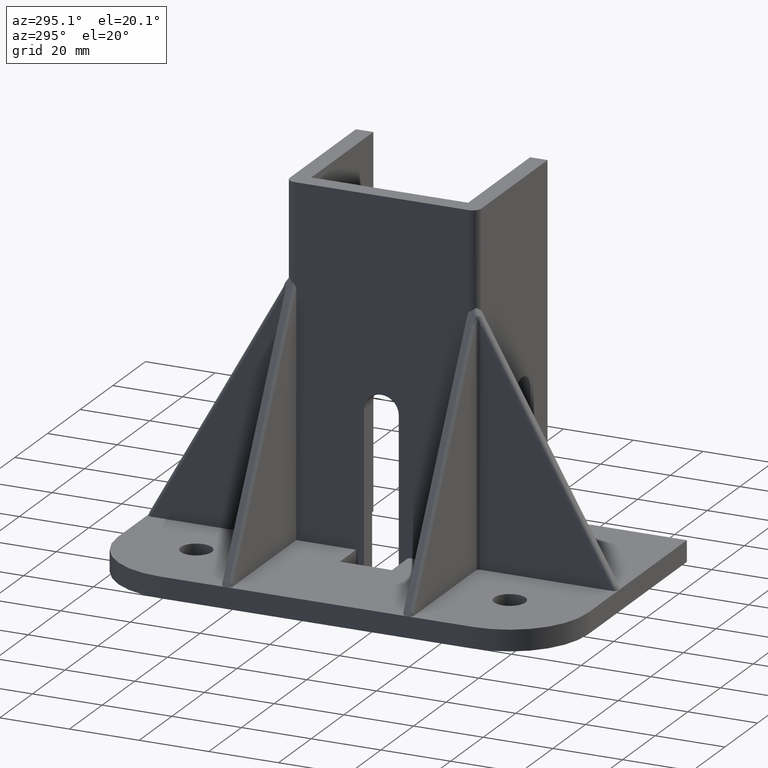
[diagram: clean part render]
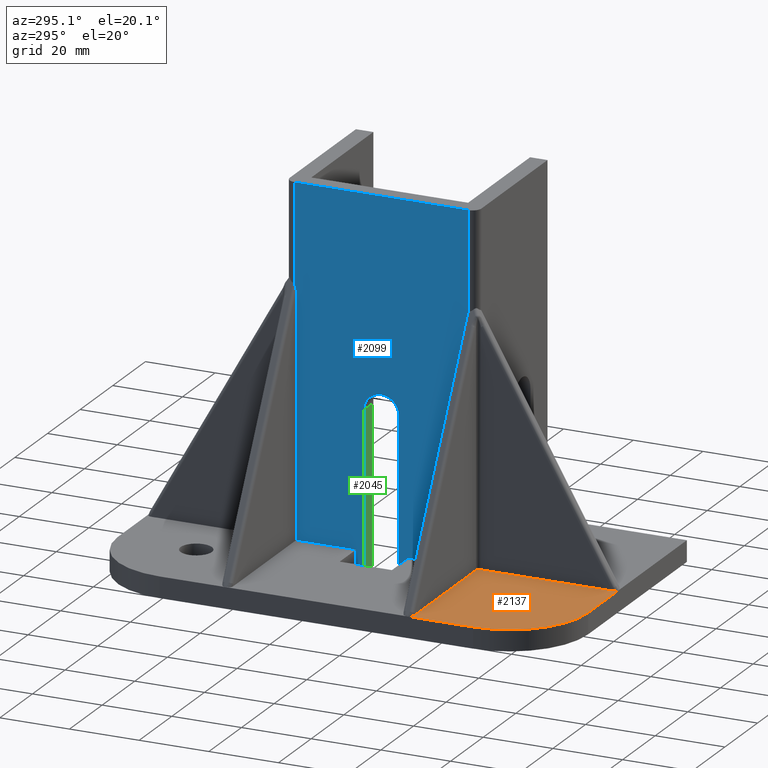
[diagram: same view with three faces highlighted in distinct colors, each labeled with its STEP entity id]
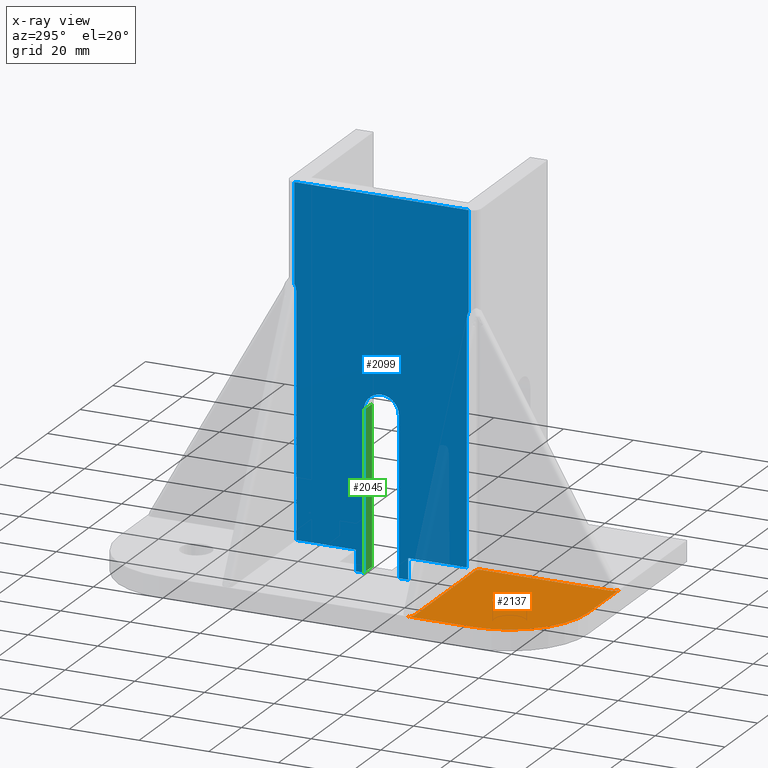
[diagram: x-ray of the same camera — body ghosted, the three highlighted faces saturated]
A machine part, auxiliary view with three faces highlighted in distinct colors.
The next image is the same camera in x-ray (body ghosted, the three faces saturated) — at least one of them is partly hidden behind the body in this view.
Their STEP definitions:

[orange] entity #2137 — the highlighted planar face has unit normal (0, 0, 1).
#46=FACE_BOUND('',#416,.T.);
#69=B_SPLINE_CURVE_WITH_KNOTS('',3,(#3818,#3819,#3820,#3821,#3822,#3823),
 .UNSPECIFIED.,.F.,.F.,(4,2,4),(-0.0723829679389083,-0.0363558015986033,
-1.19564037214156E-5),.UNSPECIFIED.);
#73=B_SPLINE_CURVE_WITH_KNOTS('',3,(#4177,#4178,#4179,#4180,#4181,#4182,
#4183,#4184),.UNSPECIFIED.,.F.,.F.,(4,2,2,4),(-0.0499113844259608,-0.0496432788258333,
-0.0245706501249044,0.),.UNSPECIFIED.);
#128=B_SPLINE_CURVE_WITH_KNOTS('',3,(#7111,#7112,#7113,#7114,#7115,#7116),
 .UNSPECIFIED.,.F.,.F.,(4,2,4),(-0.0723829981027942,-0.0363558166414322,
-1.19564860562881E-5),.UNSPECIFIED.);
#136=B_SPLINE_CURVE_WITH_KNOTS('',3,(#7513,#7514,#7515,#7516,#7517,#7518,
#7519,#7520),.UNSPECIFIED.,.F.,.F.,(4,2,2,4),(-0.0268378170276812,-0.0266967196582592,
-0.0135016130678269,0.),.UNSPECIFIED.);
#205=PLANE('',#2303);
#305=FACE_OUTER_BOUND('',#415,.T.);
#415=EDGE_LOOP('',(#1912,#1913,#1914,#1915,#1916,#1917,#1918,#1919,#1920,
#1921,#1922,#1923));
#416=EDGE_LOOP('',(#1924));
#555=LINE('',#3089,#722);
#592=LINE('',#5713,#759);
#593=LINE('',#7522,#760);
#594=LINE('',#7523,#761);
#722=VECTOR('',#2573,37.4999249998502);
#759=VECTOR('',#2712,37.49992499985);
#760=VECTOR('',#2735,18.9999619999243);
#761=VECTOR('',#2736,18.9999619999242);
#785=CIRCLE('',#2222,22.4999549999099);
#787=CIRCLE('',#2235,4.499990999982);
#789=CIRCLE('',#2243,1.49999699999405);
#804=CIRCLE('',#2291,0.999997999995994);
#805=CIRCLE('',#2294,1.49999699999399);
#878=VERTEX_POINT('',#2923);
#909=VERTEX_POINT('',#3026);
#910=VERTEX_POINT('',#3028);
#916=VERTEX_POINT('',#3060);
#920=VERTEX_POINT('',#3082);
#923=VERTEX_POINT('',#3087);
#924=VERTEX_POINT('',#3091);
#936=VERTEX_POINT('',#3790);
#986=VERTEX_POINT('',#5705);
#988=VERTEX_POINT('',#5711);
#989=VERTEX_POINT('',#5715);
#1014=VERTEX_POINT('',#7110);
#1018=VERTEX_POINT('',#7504);
#1158=EDGE_CURVE('',#910,#909,#785,.T.);
#1173=EDGE_CURVE('',#916,#916,#787,.T.);
#1184=EDGE_CURVE('',#923,#920,#555,.T.);
#1185=EDGE_CURVE('',#920,#924,#789,.T.);
#1206=EDGE_CURVE('',#936,#924,#69,.T.);
#1210=EDGE_CURVE('',#878,#936,#73,.T.);
#1285=EDGE_CURVE('',#986,#923,#804,.T.);
#1288=EDGE_CURVE('',#988,#986,#592,.T.);
#1290=EDGE_CURVE('',#989,#988,#805,.T.);
#1326=EDGE_CURVE('',#1014,#989,#128,.T.);
#1334=EDGE_CURVE('',#1018,#1014,#136,.T.);
#1335=EDGE_CURVE('',#1018,#910,#593,.T.);
#1336=EDGE_CURVE('',#909,#878,#594,.T.);
#1912=ORIENTED_EDGE('',*,*,#1184,.F.);
#1913=ORIENTED_EDGE('',*,*,#1285,.F.);
#1914=ORIENTED_EDGE('',*,*,#1288,.F.);
#1915=ORIENTED_EDGE('',*,*,#1290,.F.);
#1916=ORIENTED_EDGE('',*,*,#1326,.F.);
#1917=ORIENTED_EDGE('',*,*,#1334,.F.);
#1918=ORIENTED_EDGE('',*,*,#1335,.T.);
#1919=ORIENTED_EDGE('',*,*,#1158,.T.);
#1920=ORIENTED_EDGE('',*,*,#1336,.T.);
#1921=ORIENTED_EDGE('',*,*,#1210,.T.);
#1922=ORIENTED_EDGE('',*,*,#1206,.T.);
#1923=ORIENTED_EDGE('',*,*,#1185,.F.);
#1924=ORIENTED_EDGE('',*,*,#1173,.T.);
#2137=ADVANCED_FACE('',(#305,#46),#205,.T.);
#2222=AXIS2_PLACEMENT_3D('',#3029,#2512,#2513);
#2235=AXIS2_PLACEMENT_3D('',#3061,#2551,#2552);
#2243=AXIS2_PLACEMENT_3D('',#3092,#2576,#2577);
#2291=AXIS2_PLACEMENT_3D('',#5707,#2706,#2707);
#2294=AXIS2_PLACEMENT_3D('',#5762,#2715,#2716);
#2303=AXIS2_PLACEMENT_3D('',#7521,#2733,#2734);
#2512=DIRECTION('center_axis',(0.,0.,1.));
#2513=DIRECTION('ref_axis',(-1.,0.,0.));
#2551=DIRECTION('center_axis',(0.,0.,-1.));
#2552=DIRECTION('ref_axis',(1.,0.,0.));
#2573=DIRECTION('',(0.,-1.,0.));
#2576=DIRECTION('center_axis',(0.,0.,1.));
#2577=DIRECTION('ref_axis',(1.,0.,0.));
#2706=DIRECTION('center_axis',(0.,0.,-1.));
#2707=DIRECTION('ref_axis',(1.,0.,0.));
#2712=DIRECTION('',(1.,0.,0.));
#2715=DIRECTION('center_axis',(0.,0.,1.));
#2716=DIRECTION('ref_axis',(1.,0.,0.));
#2733=DIRECTION('center_axis',(0.,0.,1.));
#2734=DIRECTION('ref_axis',(1.,0.,0.));
#2735=DIRECTION('',(0.,-1.,0.));
#2736=DIRECTION('',(1.,0.,0.));
#2923=CARTESIAN_POINT('',(-25.999947999896,-134.99972999946,5.99998799997638));
#3026=CARTESIAN_POINT('',(-44.9999099998202,-134.99972999946,5.99998799997638));
#3028=CARTESIAN_POINT('',(-67.4998649997301,-112.49977499955,5.99998799997638));
#3029=CARTESIAN_POINT('Origin',(-44.9999099998202,-112.49977499955,5.99998799997638));
#3060=CARTESIAN_POINT('',(-49.4999009998023,-112.49977499955,5.99998799997638));
#3061=CARTESIAN_POINT('Origin',(-44.9999099998203,-112.49977499955,5.99998799997638));
#3082=CARTESIAN_POINT('',(-27.49994499989,-133.499732999466,5.99998799997638));
#3087=CARTESIAN_POINT('',(-27.4999449998901,-95.9998079996161,5.99998799997638));
#3089=CARTESIAN_POINT('',(-27.4999449998901,-95.9998079996161,5.99998799997638));
#3091=CARTESIAN_POINT('',(-27.0645598786755,-134.556595315524,6.0001208799006));
#3092=CARTESIAN_POINT('Origin',(-25.999947999896,-133.499732999466,5.99998799997638));
#3790=CARTESIAN_POINT('',(-26.5765794743388,-134.884466599359,5.99998799997638));
#3818=CARTESIAN_POINT('Ctrl Pts',(-26.5765794743388,-134.884466599359,5.99998799997638));
#3819=CARTESIAN_POINT('Ctrl Pts',(-26.6886526192082,-134.837797043008,5.99998799997638));
#3820=CARTESIAN_POINT('Ctrl Pts',(-26.7729893946969,-134.787492797828,5.99998799997871));
#3821=CARTESIAN_POINT('Ctrl Pts',(-26.9012111301745,-134.701284073022,5.99998799997871));
#3822=CARTESIAN_POINT('Ctrl Pts',(-26.979171801328,-134.64244269718,5.99998799997638));
#3823=CARTESIAN_POINT('Ctrl Pts',(-27.0645072091341,-134.556475489677,5.99998799997638));
#4177=CARTESIAN_POINT('Ctrl Pts',(-25.999947999896,-134.99972999946,5.99998799997638));
#4178=CARTESIAN_POINT('Ctrl Pts',(-26.0008319985588,-134.999723753639,5.99998799997638));
#4179=CARTESIAN_POINT('Ctrl Pts',(-26.0017159618169,-134.999717508067,5.99998799997638));
#4180=CARTESIAN_POINT('Ctrl Pts',(-26.0852694653588,-134.99912033066,5.99998799997638));
#4181=CARTESIAN_POINT('Ctrl Pts',(-26.1570088616862,-134.998010264419,5.99998799997642));
#4182=CARTESIAN_POINT('Ctrl Pts',(-26.4281837917234,-134.943801709025,5.99998799997642));
#4183=CARTESIAN_POINT('Ctrl Pts',(-26.5007503708758,-134.915416753493,5.99998799997639));
#4184=CARTESIAN_POINT('Ctrl Pts',(-26.5765794743387,-134.884466599359,5.99998799997639));
#5705=CARTESIAN_POINT('',(-28.4999429998861,-94.9998099996201,5.99998799997638));
#5707=CARTESIAN_POINT('Origin',(-28.4999429998861,-95.9998079996161,5.99998799997638));
#5711=CARTESIAN_POINT('',(-65.9998679997361,-94.9998099996201,5.99998799997638));
#5713=CARTESIAN_POINT('',(-65.9998679997361,-94.9998099996201,5.99998799997638));
#5715=CARTESIAN_POINT('',(-67.0567299803669,-94.5644252115062,6.00012088081632));
#5762=CARTESIAN_POINT('Origin',(-65.9998679997361,-93.4998129996261,5.99998799997638));
#7110=CARTESIAN_POINT('',(-67.3846015085352,-94.0764446928237,5.99998799997638));
#7111=CARTESIAN_POINT('Ctrl Pts',(-67.3846015085352,-94.0764446928237,5.99998799997638));
#7112=CARTESIAN_POINT('Ctrl Pts',(-67.3379319155314,-94.1885178758216,5.99998799997638));
#7113=CARTESIAN_POINT('Ctrl Pts',(-67.2876276317022,-94.2728546746249,5.99998799997642));
#7114=CARTESIAN_POINT('Ctrl Pts',(-67.2014188431268,-94.4010764393041,5.99998799997642));
#7115=CARTESIAN_POINT('Ctrl Pts',(-67.1425774239541,-94.4790371263748,5.99998799997638));
#7116=CARTESIAN_POINT('Ctrl Pts',(-67.0566101542251,-94.5643725421208,5.99998799997638));
#7504=CARTESIAN_POINT('',(-67.4998649997301,-93.4998129996261,5.99998799997638));
#7513=CARTESIAN_POINT('Ctrl Pts',(-67.4998649997301,-93.4998129996261,5.99998799997638));
#7514=CARTESIAN_POINT('Ctrl Pts',(-67.4998587539037,-93.500696998638,5.99998799997638));
#7515=CARTESIAN_POINT('Ctrl Pts',(-67.4998525083265,-93.5015809622507,5.99998799997638));
#7516=CARTESIAN_POINT('Ctrl Pts',(-67.4992553304423,-93.585134499186,5.99998799997638));
#7517=CARTESIAN_POINT('Ctrl Pts',(-67.4981452633001,-93.6568739246575,5.99998799997639));
#7518=CARTESIAN_POINT('Ctrl Pts',(-67.4427525562384,-93.9339723859503,5.99998799997639));
#7519=CARTESIAN_POINT('Ctrl Pts',(-67.4016086761196,-94.034776477119,5.99998799997638));
#7520=CARTESIAN_POINT('Ctrl Pts',(-67.3846015085351,-94.0764446928237,5.99998799997638));
#7521=CARTESIAN_POINT('Origin',(-80.9998427246257,-148.499707724581,5.99998799997638));
#7522=CARTESIAN_POINT('',(-67.4998649997301,-93.4998129996261,5.99998799997638));
#7523=CARTESIAN_POINT('',(-44.9999099998202,-134.99972999946,5.99998799997638));

[blue] entity #2099 — the highlighted planar face has unit normal (-1, 0, 0).
#157=ELLIPSE('',#2257,2.03730827393281,1.);
#158=ELLIPSE('',#2260,2.03730827393281,1.);
#194=PLANE('',#2259);
#267=FACE_OUTER_BOUND('',#377,.T.);
#377=EDGE_LOOP('',(#1702,#1703,#1704,#1705,#1706,#1707,#1708,#1709,#1710,
#1711,#1712,#1713,#1714,#1715,#1716,#1717,#1718,#1719));
#432=LINE('',#2759,#599);
#436=LINE('',#2771,#603);
#441=LINE('',#2780,#608);
#503=LINE('',#2941,#670);
#507=LINE('',#2948,#674);
#529=LINE('',#3016,#696);
#539=LINE('',#3041,#706);
#542=LINE('',#3048,#709);
#558=LINE('',#4710,#725);
#563=LINE('',#4733,#730);
#564=LINE('',#4735,#731);
#565=LINE('',#4738,#732);
#566=LINE('',#4740,#733);
#567=LINE('',#4741,#734);
#599=VECTOR('',#2320,0.0999803814288924);
#603=VECTOR('',#2332,45.0500001907349);
#608=VECTOR('',#2339,45.0500001907349);
#670=VECTOR('',#2453,2.28523584626962);
#674=VECTOR('',#2457,2.71475415371109);
#696=VECTOR('',#2499,49.99988999978);
#706=VECTOR('',#2527,5.99998799997638);
#709=VECTOR('',#2534,5.99998799997638);
#725=VECTOR('',#2600,28.2728984897904);
#730=VECTOR('',#2617,16.9999659999321);
#731=VECTOR('',#2618,68.9625497599817);
#732=VECTOR('',#2621,28.2728984897903);
#733=VECTOR('',#2622,68.9625497599817);
#734=VECTOR('',#2623,16.9999659999321);
#764=CIRCLE('',#2174,4.94999980926514);
#766=CIRCLE('',#2178,4.94999980926514);
#811=VERTEX_POINT('',#2749);
#812=VERTEX_POINT('',#2750);
#815=VERTEX_POINT('',#2758);
#817=VERTEX_POINT('',#2764);
#819=VERTEX_POINT('',#2770);
#822=VERTEX_POINT('',#2778);
#881=VERTEX_POINT('',#2940);
#884=VERTEX_POINT('',#2946);
#905=VERTEX_POINT('',#3013);
#906=VERTEX_POINT('',#3015);
#912=VERTEX_POINT('',#3039);
#914=VERTEX_POINT('',#3047);
#948=VERTEX_POINT('',#4703);
#951=VERTEX_POINT('',#4724);
#954=VERTEX_POINT('',#4732);
#955=VERTEX_POINT('',#4734);
#956=VERTEX_POINT('',#4736);
#957=VERTEX_POINT('',#4739);
#1027=EDGE_CURVE('',#811,#812,#764,.T.);
#1031=EDGE_CURVE('',#812,#815,#432,.T.);
#1034=EDGE_CURVE('',#815,#817,#766,.T.);
#1037=EDGE_CURVE('',#819,#817,#436,.T.);
#1042=EDGE_CURVE('',#822,#811,#441,.T.);
#1116=EDGE_CURVE('',#881,#819,#503,.T.);
#1120=EDGE_CURVE('',#822,#884,#507,.T.);
#1151=EDGE_CURVE('',#905,#906,#529,.T.);
#1164=EDGE_CURVE('',#884,#912,#539,.T.);
#1167=EDGE_CURVE('',#881,#914,#542,.T.);
#1221=EDGE_CURVE('',#905,#948,#558,.T.);
#1226=EDGE_CURVE('',#951,#948,#157,.T.);
#1230=EDGE_CURVE('',#912,#954,#563,.T.);
#1231=EDGE_CURVE('',#954,#955,#564,.T.);
#1232=EDGE_CURVE('',#955,#956,#158,.T.);
#1233=EDGE_CURVE('',#906,#956,#565,.T.);
#1234=EDGE_CURVE('',#957,#951,#566,.T.);
#1235=EDGE_CURVE('',#957,#914,#567,.T.);
#1702=ORIENTED_EDGE('',*,*,#1042,.F.);
#1703=ORIENTED_EDGE('',*,*,#1120,.T.);
#1704=ORIENTED_EDGE('',*,*,#1164,.T.);
#1705=ORIENTED_EDGE('',*,*,#1230,.T.);
#1706=ORIENTED_EDGE('',*,*,#1231,.T.);
#1707=ORIENTED_EDGE('',*,*,#1232,.T.);
#1708=ORIENTED_EDGE('',*,*,#1233,.F.);
#1709=ORIENTED_EDGE('',*,*,#1151,.F.);
#1710=ORIENTED_EDGE('',*,*,#1221,.T.);
#1711=ORIENTED_EDGE('',*,*,#1226,.F.);
#1712=ORIENTED_EDGE('',*,*,#1234,.F.);
#1713=ORIENTED_EDGE('',*,*,#1235,.T.);
#1714=ORIENTED_EDGE('',*,*,#1167,.F.);
#1715=ORIENTED_EDGE('',*,*,#1116,.T.);
#1716=ORIENTED_EDGE('',*,*,#1037,.T.);
#1717=ORIENTED_EDGE('',*,*,#1034,.F.);
#1718=ORIENTED_EDGE('',*,*,#1031,.F.);
#1719=ORIENTED_EDGE('',*,*,#1027,.F.);
#2099=ADVANCED_FACE('',(#267),#194,.T.);
#2174=AXIS2_PLACEMENT_3D('',#2751,#2312,#2313);
#2178=AXIS2_PLACEMENT_3D('',#2765,#2325,#2326);
#2257=AXIS2_PLACEMENT_3D('',#4725,#2609,#2610);
#2259=AXIS2_PLACEMENT_3D('',#4731,#2615,#2616);
#2260=AXIS2_PLACEMENT_3D('',#4737,#2619,#2620);
#2312=DIRECTION('center_axis',(-1.,0.,0.));
#2313=DIRECTION('ref_axis',(0.,-0.707106781186546,0.707106781186549));
#2320=DIRECTION('',(0.,1.,0.));
#2325=DIRECTION('center_axis',(-1.,0.,0.));
#2326=DIRECTION('ref_axis',(0.,0.707106781186548,0.707106781186548));
#2332=DIRECTION('',(0.,0.,1.));
#2339=DIRECTION('',(0.,0.,1.));
#2453=DIRECTION('',(0.,-1.,0.));
#2457=DIRECTION('',(0.,-1.,0.));
#2499=DIRECTION('',(0.,-1.,0.));
#2527=DIRECTION('',(0.,0.,1.));
#2534=DIRECTION('',(0.,0.,1.));
#2600=DIRECTION('',(0.,0.,-1.));
#2609=DIRECTION('center_axis',(-1.,0.,0.));
#2610=DIRECTION('ref_axis',(0.,0.,-1.));
#2615=DIRECTION('center_axis',(-1.,0.,0.));
#2616=DIRECTION('ref_axis',(0.,0.,1.));
#2617=DIRECTION('',(0.,-1.,0.));
#2618=DIRECTION('',(0.,0.,1.));
#2619=DIRECTION('center_axis',(1.,0.,0.));
#2620=DIRECTION('ref_axis',(0.,0.,-1.));
#2621=DIRECTION('',(0.,0.,-1.));
#2622=DIRECTION('',(0.,0.,1.));
#2623=DIRECTION('',(0.,-1.,0.));
#2749=CARTESIAN_POINT('',(-27.49994499989,-72.450095845989,45.0500001907349));
#2750=CARTESIAN_POINT('',(-27.4999449998899,-67.5000960367238,50.));
#2751=CARTESIAN_POINT('Origin',(-27.4999449998899,-67.5000960367238,45.0500001907349));
#2758=CARTESIAN_POINT('',(-27.4999449998899,-67.400115655295,50.));
#2759=CARTESIAN_POINT('',(-27.4999449998899,-67.3350960367239,50.));
#2764=CARTESIAN_POINT('',(-27.4999449998899,-62.4501158460298,45.0500001907349));
#2765=CARTESIAN_POINT('Origin',(-27.4999449998899,-67.400115655295,45.0500001907349));
#2770=CARTESIAN_POINT('',(-27.4999449998899,-62.4501158460298,0.));
#2771=CARTESIAN_POINT('',(-27.4999449998899,-62.4501158460298,0.));
#2778=CARTESIAN_POINT('',(-27.49994499989,-72.450095845989,0.));
#2780=CARTESIAN_POINT('',(-27.49994499989,-72.450095845989,0.));
#2940=CARTESIAN_POINT('',(-27.49994499989,-60.1648799997602,0.));
#2941=CARTESIAN_POINT('',(-27.49994499989,-59.9998799997602,0.));
#2946=CARTESIAN_POINT('',(-27.49994499989,-75.1648499997001,0.));
#2948=CARTESIAN_POINT('',(-27.49994499989,-72.285095845989,0.));
#3013=CARTESIAN_POINT('',(-27.4999449998899,-42.4999199998401,104.999789912801));
#3015=CARTESIAN_POINT('',(-27.4999449998899,-92.4998099996202,104.999789912801));
#3016=CARTESIAN_POINT('',(-27.4999449998899,-42.4999199998401,104.999789912801));
#3039=CARTESIAN_POINT('',(-27.4999449998899,-75.1648499997001,5.99998799997638));
#3041=CARTESIAN_POINT('',(-27.49994499989,-75.1648499997001,0.));
#3047=CARTESIAN_POINT('',(-27.4999449998899,-60.1648799997602,5.99998799997638));
#3048=CARTESIAN_POINT('',(-27.49994499989,-60.1648799997602,0.));
#4703=CARTESIAN_POINT('',(-27.4999449998899,-42.4999199998401,76.7268914230107));
#4710=CARTESIAN_POINT('',(-27.4999449998899,-42.4999199998401,104.999789912801));
#4724=CARTESIAN_POINT('',(-27.4999449998899,-42.9999139998281,74.9625377599581));
#4725=CARTESIAN_POINT('Origin',(-27.4999449998899,-41.9999139998281,74.9625377599581));
#4731=CARTESIAN_POINT('Origin',(-27.4999449998899,-1.49995762975479,-4.3307087253E-5));
#4732=CARTESIAN_POINT('',(-27.4999449998899,-91.9998159996321,5.99998799997638));
#4733=CARTESIAN_POINT('',(-27.4999449998899,-74.9998499997,5.99998799997638));
#4734=CARTESIAN_POINT('',(-27.4999449998899,-91.9998159996321,74.9625377599581));
#4735=CARTESIAN_POINT('',(-27.4999449998899,-91.9998159996321,5.99998799997638));
#4736=CARTESIAN_POINT('',(-27.4999449998899,-92.4998099996202,76.7268914230107));
#4737=CARTESIAN_POINT('Origin',(-27.4999449998899,-92.9998159996322,74.9625377599581));
#4738=CARTESIAN_POINT('',(-27.4999449998899,-92.4998099996202,104.999789912801));
#4739=CARTESIAN_POINT('',(-27.4999449998899,-42.9999139998281,5.99998799997638));
#4740=CARTESIAN_POINT('',(-27.4999449998899,-42.9999139998281,5.99998799997638));
#4741=CARTESIAN_POINT('',(-27.4999449998899,-42.9999139998281,5.99998799997638));

[green] entity #2045 — the highlighted planar face has unit normal (0, -1, 0).
#163=PLANE('',#2180);
#213=FACE_OUTER_BOUND('',#321,.T.);
#321=EDGE_LOOP('',(#1367,#1368,#1369,#1370));
#435=LINE('',#2767,#602);
#436=LINE('',#2771,#603);
#437=LINE('',#2773,#604);
#438=LINE('',#2774,#605);
#602=VECTOR('',#2327,10.);
#603=VECTOR('',#2332,45.0500001907349);
#604=VECTOR('',#2333,4.99998999998002);
#605=VECTOR('',#2334,45.0500001907349);
#817=VERTEX_POINT('',#2764);
#818=VERTEX_POINT('',#2766);
#819=VERTEX_POINT('',#2770);
#820=VERTEX_POINT('',#2772);
#1035=EDGE_CURVE('',#817,#818,#435,.T.);
#1037=EDGE_CURVE('',#819,#817,#436,.T.);
#1038=EDGE_CURVE('',#819,#820,#437,.T.);
#1039=EDGE_CURVE('',#820,#818,#438,.T.);
#1367=ORIENTED_EDGE('',*,*,#1035,.F.);
#1368=ORIENTED_EDGE('',*,*,#1037,.F.);
#1369=ORIENTED_EDGE('',*,*,#1038,.T.);
#1370=ORIENTED_EDGE('',*,*,#1039,.T.);
#2045=ADVANCED_FACE('',(#213),#163,.T.);
#2180=AXIS2_PLACEMENT_3D('',#2769,#2330,#2331);
#2327=DIRECTION('',(1.,0.,0.));
#2330=DIRECTION('center_axis',(0.,-1.,0.));
#2331=DIRECTION('ref_axis',(0.,0.,-1.));
#2332=DIRECTION('',(0.,0.,1.));
#2333=DIRECTION('',(1.,0.,0.));
#2334=DIRECTION('',(0.,0.,1.));
#2764=CARTESIAN_POINT('',(-27.4999449998899,-62.4501158460298,45.0500001907349));
#2766=CARTESIAN_POINT('',(-22.4999549999099,-62.4501158460298,45.0500001907349));
#2767=CARTESIAN_POINT('',(-33.4499363621219,-62.4501158460298,45.0500001907349));
#2769=CARTESIAN_POINT('Origin',(-27.4999449998899,-62.4501158460298,0.));
#2770=CARTESIAN_POINT('',(-27.4999449998899,-62.4501158460298,0.));
#2771=CARTESIAN_POINT('',(-27.4999449998899,-62.4501158460298,0.));
#2772=CARTESIAN_POINT('',(-22.4999549999099,-62.4501158460298,0.));
#2773=CARTESIAN_POINT('',(-27.4999449998899,-62.4501158460298,0.));
#2774=CARTESIAN_POINT('',(-22.4999549999099,-62.4501158460298,0.));